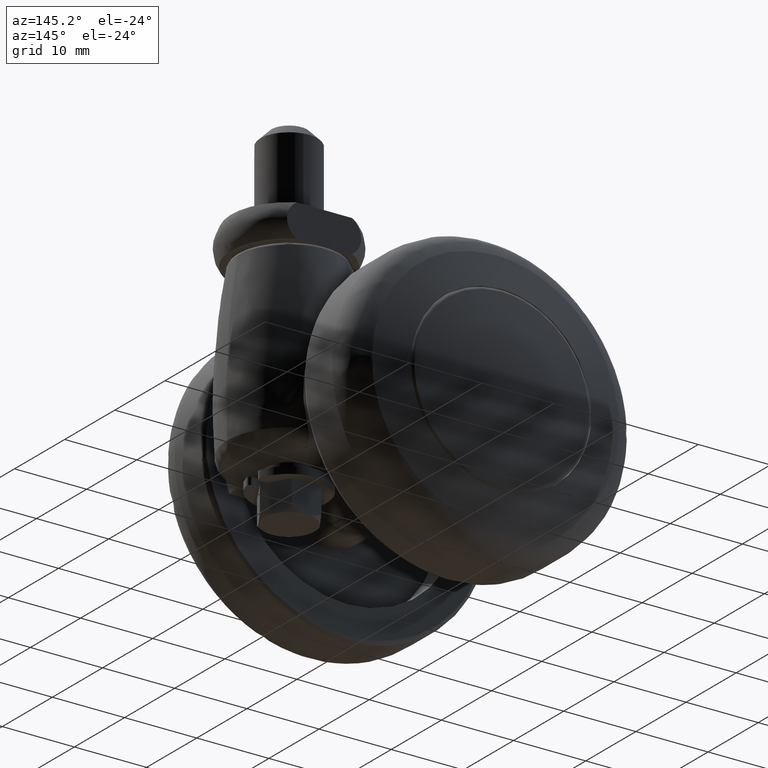
[diagram: clean part render]
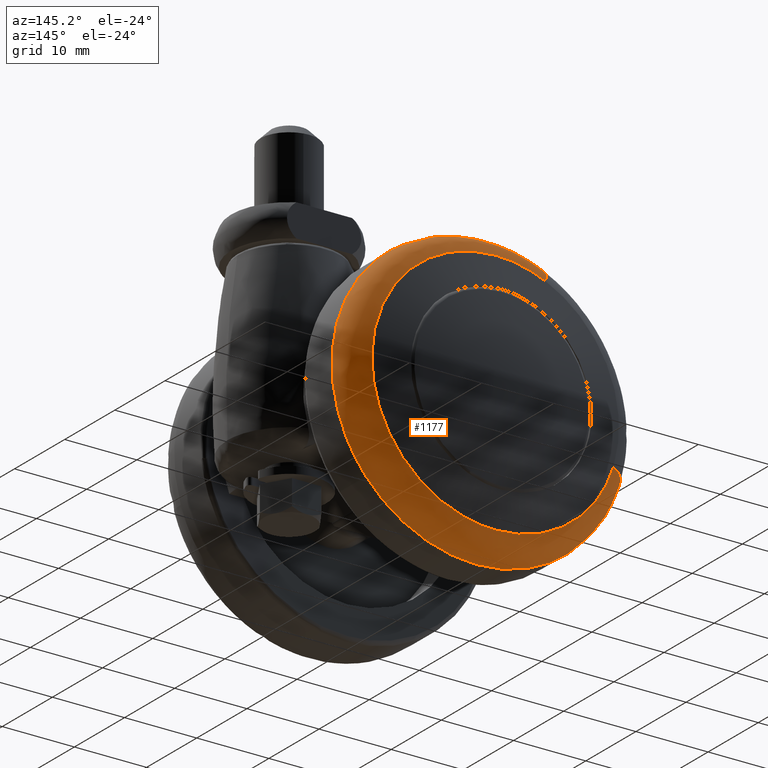
[diagram: same view with one face highlighted and labeled with its STEP entity id]
A machine part, auxiliary view. The second image highlights one B-rep face of the part: STEP entity #1177.
In plain terms, the highlighted face is a freeform B-spline surface patch.
Its self-contained STEP definition (entity closure, byte-faithful):
#260=CARTESIAN_POINT('',(-15.271114650524670,-15.710816999999979,-12.914838649031701));
#261=VERTEX_POINT('',#260);
#262=CARTESIAN_POINT('',(0.0,-15.710817000000000,-20.0));
#263=VERTEX_POINT('',#262);
#264=CARTESIAN_POINT('',(-15.271114650524668,-15.710816999999979,-12.914838649031706));
#265=CARTESIAN_POINT('',(-9.279167255449400,-15.710816999999995,-20.0));
#266=CARTESIAN_POINT('',(0.0,-15.710817000000000,-20.0));
#274=(BOUNDED_CURVE()B_SPLINE_CURVE(2,(#264,#265,#266),.UNSPECIFIED.,.F.,.U.)B_SPLINE_CURVE_WITH_KNOTS((3,3),(0.862408068754087,1.0),.UNSPECIFIED.)CURVE()GEOMETRIC_REPRESENTATION_ITEM()RATIONAL_B_SPLINE_CURVE((0.855039476729178,0.838801025498501,1.0))REPRESENTATION_ITEM(''));
#275=EDGE_CURVE('',#261,#263,#274,.T.);
#346=CARTESIAN_POINT('',(-13.767091024963470,-15.710817000000000,14.507487884205510));
#347=VERTEX_POINT('',#346);
#353=CARTESIAN_POINT('',(0.0,-15.710817000000000,20.0));
#354=VERTEX_POINT('',#353);
#355=CARTESIAN_POINT('',(0.0,-15.710817000000000,20.0));
#356=CARTESIAN_POINT('',(-7.979190138179949,-15.710816999999999,19.999999999999993));
#357=CARTESIAN_POINT('',(-13.767091024963474,-15.710817000000004,14.507487884205506));
#365=(BOUNDED_CURVE()B_SPLINE_CURVE(2,(#355,#356,#357),.UNSPECIFIED.,.F.,.U.)B_SPLINE_CURVE_WITH_KNOTS((3,3),(0.500000000000000,0.621049516487266),.UNSPECIFIED.)CURVE()GEOMETRIC_REPRESENTATION_ITEM()RATIONAL_B_SPLINE_CURVE((1.0,0.858181669920930,0.853699662122684))REPRESENTATION_ITEM(''));
#366=EDGE_CURVE('',#354,#347,#365,.T.);
#368=CARTESIAN_POINT('',(8.106151179093516,-15.710817000069889,18.283607769302009));
#369=VERTEX_POINT('',#368);
#370=CARTESIAN_POINT('',(8.106151179093518,-15.710817000069888,18.283607769302005));
#371=CARTESIAN_POINT('',(4.234789588246176,-15.710816999999997,20.0));
#372=CARTESIAN_POINT('',(0.0,-15.710817000000000,20.0));
#380=(BOUNDED_CURVE()B_SPLINE_CURVE(2,(#370,#371,#372),.UNSPECIFIED.,.F.,.U.)B_SPLINE_CURVE_WITH_KNOTS((3,3),(0.431175101877697,0.500000000000000),.UNSPECIFIED.)CURVE()GEOMETRIC_REPRESENTATION_ITEM()RATIONAL_B_SPLINE_CURVE((0.883129907828137,0.919366616217803,1.0))REPRESENTATION_ITEM(''));
#381=EDGE_CURVE('',#369,#354,#380,.T.);
#383=CARTESIAN_POINT('',(19.097290894931451,-15.710817000069440,-5.940831631545199));
#384=VERTEX_POINT('',#383);
#400=CARTESIAN_POINT('',(0.0,-15.710817000000000,-20.0));
#401=CARTESIAN_POINT('',(14.723730654574370,-15.710816999999993,-19.999999999999996));
#402=CARTESIAN_POINT('',(19.097290894931451,-15.710817000069435,-5.940831631545199));
#410=(BOUNDED_CURVE()B_SPLINE_CURVE(2,(#400,#401,#402),.UNSPECIFIED.,.F.,.U.)B_SPLINE_CURVE_WITH_KNOTS((3,3),(0.0,0.199458637681191),.UNSPECIFIED.)CURVE()GEOMETRIC_REPRESENTATION_ITEM()RATIONAL_B_SPLINE_CURVE((1.0,0.766319670357639,0.905515822342134))REPRESENTATION_ITEM(''));
#411=EDGE_CURVE('',#263,#384,#410,.T.);
#430=CARTESIAN_POINT('',(-13.767091024963474,-15.710817000000004,14.507487884205506));
#431=CARTESIAN_POINT('',(-19.999999999999996,-15.710816999999995,8.592678917762354));
#432=CARTESIAN_POINT('',(-20.0,-15.710817000000000,1.673897E-015));
#433=CARTESIAN_POINT('',(-20.0,-15.710817000000002,-7.323181462789214));
#434=CARTESIAN_POINT('',(-15.271114650524668,-15.710816999999979,-12.914838649031706));
#442=(BOUNDED_CURVE()B_SPLINE_CURVE(2,(#430,#431,#432,#433,#434),.UNSPECIFIED.,.F.,.U.)B_SPLINE_CURVE_WITH_KNOTS((3,2,3),(0.621049516487265,0.750000000000000,0.862408068754087),.UNSPECIFIED.)CURVE()GEOMETRIC_REPRESENTATION_ITEM()RATIONAL_B_SPLINE_CURVE((0.853699662122684,0.848925111265616,1.0,0.868305755688046,0.855039476729178))REPRESENTATION_ITEM(''));
#443=EDGE_CURVE('',#347,#261,#442,.T.);
#1060=CARTESIAN_POINT('',(8.103293420644290,-15.473506247143689,18.277167592414600));
#1061=CARTESIAN_POINT('',(7.044574368192737,-15.473506247143677,18.746557123842965));
#1062=CARTESIAN_POINT('',(5.938738749477722,-15.473506247143684,19.090563153760517));
#1063=CARTESIAN_POINT('',(-13.151824404282804,-15.473506247143685,25.029301903238235));
#1064=CARTESIAN_POINT('',(-19.090563153760517,-15.473506247143684,5.938738749477722));
#1065=CARTESIAN_POINT('',(-25.029301903238249,-15.473506247143685,-13.151824404282801));
#1066=CARTESIAN_POINT('',(-5.938738749477723,-15.473506247143684,-19.090563153760517));
#1067=CARTESIAN_POINT('',(13.151824404282799,-15.473506247143685,-25.029301903238249));
#1068=CARTESIAN_POINT('',(19.090563153760517,-15.473506247143684,-5.938738749477724));
#1069=CARTESIAN_POINT('',(8.184736693350166,-18.854524697004308,18.460864796409179));
#1070=CARTESIAN_POINT('',(7.115376838445620,-18.854524697004312,18.934971992326414));
#1071=CARTESIAN_POINT('',(5.998426865703460,-18.854524697004312,19.282435502487203));
#1072=CARTESIAN_POINT('',(-13.284008636783749,-18.854524697004319,25.280862368190665));
#1073=CARTESIAN_POINT('',(-19.282435502487203,-18.854524697004312,5.998426865703461));
#1074=CARTESIAN_POINT('',(-25.280862368190665,-18.854524697004319,-13.284008636783748));
#1075=CARTESIAN_POINT('',(-5.998426865703461,-18.854524697004312,-19.282435502487203));
#1076=CARTESIAN_POINT('',(13.284008636783748,-18.854524697004319,-25.280862368190665));
#1077=CARTESIAN_POINT('',(19.282435502487203,-18.854524697004312,-5.998426865703464));
#1078=CARTESIAN_POINT('',(6.846554747843488,-19.610033649774852,15.442564160169313));
#1079=CARTESIAN_POINT('',(5.952032289021034,-19.610033649774856,15.839156133107325));
#1080=CARTESIAN_POINT('',(5.017700565778839,-19.610033649774845,16.129810314704468));
#1081=CARTESIAN_POINT('',(-11.112109748925622,-19.610033649774849,21.147510880483306));
#1082=CARTESIAN_POINT('',(-16.129810314704468,-19.610033649774845,5.017700565778839));
#1083=CARTESIAN_POINT('',(-21.147510880483306,-19.610033649774849,-11.112109748925622));
#1084=CARTESIAN_POINT('',(-5.017700565778839,-19.610033649774845,-16.129810314704468));
#1085=CARTESIAN_POINT('',(11.112109748925622,-19.610033649774849,-21.147510880483306));
#1086=CARTESIAN_POINT('',(16.129810314704468,-19.610033649774845,-5.017700565778840));
#1094=(BOUNDED_SURFACE()B_SPLINE_SURFACE(2,2,((#1060,#1069,#1078),(#1061,#1070,#1079),(#1062,#1071,#1080),(#1063,#1072,#1081),(#1064,#1073,#1082),(#1065,#1074,#1083),(#1066,#1075,#1084),(#1067,#1076,#1085),(#1068,#1077,#1086)),.UNSPECIFIED.,.F.,.F.,.U.)B_SPLINE_SURFACE_WITH_KNOTS((3,2,2,2,3),(3,3),(0.0,2.650030368855470,35.775441570402727,68.900852771949985,102.026263973497290),(0.0,5.864055308616055),.UNSPECIFIED.)GEOMETRIC_REPRESENTATION_ITEM()RATIONAL_B_SPLINE_SURFACE(((0.875931297452828,0.669055781850209,0.877444359425143),(0.893948527657870,0.682817742493314,0.895492712146242),(0.915397607339027,0.699201025997140,0.916978842435022),(0.647283855631366,0.494409786895169,0.648401957690395),(0.915397607339027,0.699201025997140,0.916978842435022),(0.647283855631366,0.494409786895169,0.648401957690395),(0.915397607339027,0.699201025997140,0.916978842435022),(0.647283855631366,0.494409786895169,0.648401957690395),(0.915397607339027,0.699201025997140,0.916978842435022)))REPRESENTATION_ITEM('')SURFACE());
#1095=CARTESIAN_POINT('',(6.939526629438012,-19.550340797989250,15.652259647310309));
#1096=VERTEX_POINT('',#1095);
#1097=CARTESIAN_POINT('',(0.0,-19.550340798363852,17.121631401930902));
#1098=VERTEX_POINT('',#1097);
#1099=CARTESIAN_POINT('',(6.939526629438012,-19.550340797989247,15.652259647310315));
#1100=CARTESIAN_POINT('',(3.625325319825641,-19.550340798363859,17.121631401930895));
#1101=CARTESIAN_POINT('',(0.0,-19.550340798363852,17.121631401930902));
#1109=(BOUNDED_CURVE()B_SPLINE_CURVE(2,(#1099,#1100,#1101),.UNSPECIFIED.,.F.,.U.)B_SPLINE_CURVE_WITH_KNOTS((3,3),(0.431175101876103,0.500000000000000),.UNSPECIFIED.)CURVE()GEOMETRIC_REPRESENTATION_ITEM()RATIONAL_B_SPLINE_CURVE((0.883129907826458,0.919366616215936,1.0))REPRESENTATION_ITEM(''));
#1110=EDGE_CURVE('',#1096,#1098,#1109,.T.);
#1111=ORIENTED_EDGE('',*,*,#1110,.F.);
#1112=CARTESIAN_POINT('',(8.106151179093516,-15.710817000069893,18.283607769302009));
#1113=CARTESIAN_POINT('',(8.106151179047831,-18.709489488835210,18.283607769207627));
#1114=CARTESIAN_POINT('',(6.939526629438013,-19.550340797989247,15.652259647310313));
#1122=(BOUNDED_CURVE()B_SPLINE_CURVE(2,(#1112,#1113,#1114),.UNSPECIFIED.,.F.,.U.)B_SPLINE_CURVE_WITH_KNOTS((3,3),(-1.680154585360279,-0.314372153896799),.UNSPECIFIED.)CURVE()GEOMETRIC_REPRESENTATION_ITEM()RATIONAL_B_SPLINE_CURVE((0.857997957390248,0.687057807158320,0.859373527053074))REPRESENTATION_ITEM(''));
#1123=EDGE_CURVE('',#369,#1096,#1122,.T.);
#1124=ORIENTED_EDGE('',*,*,#1123,.F.);
#1125=ORIENTED_EDGE('',*,*,#381,.T.);
#1126=ORIENTED_EDGE('',*,*,#366,.T.);
#1127=ORIENTED_EDGE('',*,*,#443,.T.);
#1128=ORIENTED_EDGE('',*,*,#275,.T.);
#1129=ORIENTED_EDGE('',*,*,#411,.T.);
#1130=CARTESIAN_POINT('',(16.348838775160761,-19.550340797973998,-5.085836471327559));
#1131=VERTEX_POINT('',#1130);
#1132=CARTESIAN_POINT('',(19.097290894931447,-15.710817000069436,-5.940831631545199));
#1133=CARTESIAN_POINT('',(19.097290894833442,-18.709489488750066,-5.940831631509769));
#1134=CARTESIAN_POINT('',(16.348838775160761,-19.550340797973998,-5.085836471327559));
#1142=(BOUNDED_CURVE()B_SPLINE_CURVE(2,(#1132,#1133,#1134),.UNSPECIFIED.,.F.,.U.)B_SPLINE_CURVE_WITH_KNOTS((3,3),(-1.680154585360538,-0.314372153927780),.UNSPECIFIED.)CURVE()GEOMETRIC_REPRESENTATION_ITEM()RATIONAL_B_SPLINE_CURVE((0.896656290732558,0.718014185910960,0.898093838658893))REPRESENTATION_ITEM(''));
#1143=EDGE_CURVE('',#384,#1131,#1142,.T.);
#1144=ORIENTED_EDGE('',*,*,#1143,.T.);
#1145=CARTESIAN_POINT('',(0.0,-19.550340798363852,-17.121631401930902));
#1146=VERTEX_POINT('',#1145);
#1147=CARTESIAN_POINT('',(0.0,-19.550340798363852,-17.121631401930902));
#1148=CARTESIAN_POINT('',(12.604714456254973,-19.550340798363852,-17.121631401930902));
#1149=CARTESIAN_POINT('',(16.348838775160754,-19.550340797974002,-5.085836471327559));
#1157=(BOUNDED_CURVE()B_SPLINE_CURVE(2,(#1147,#1148,#1149),.UNSPECIFIED.,.F.,.U.)B_SPLINE_CURVE_WITH_KNOTS((3,3),(0.0,0.199458637678867),.UNSPECIFIED.)CURVE()GEOMETRIC_REPRESENTATION_ITEM()RATIONAL_B_SPLINE_CURVE((1.0,0.766319670360362,0.905515822338890))REPRESENTATION_ITEM(''));
#1158=EDGE_CURVE('',#1146,#1131,#1157,.T.);
#1159=ORIENTED_EDGE('',*,*,#1158,.F.);
#1160=CARTESIAN_POINT('',(0.0,-19.550340798363852,17.121631401930902));
#1161=CARTESIAN_POINT('',(-17.121631401930909,-19.550340798363848,17.121631401930909));
#1162=CARTESIAN_POINT('',(-17.121631401930902,-19.550340798363852,1.673897E-015));
#1163=CARTESIAN_POINT('',(-17.121631401930909,-19.550340798363848,-17.121631401930909));
#1164=CARTESIAN_POINT('',(0.0,-19.550340798363852,-17.121631401930902));
#1172=(BOUNDED_CURVE()B_SPLINE_CURVE(2,(#1160,#1161,#1162,#1163,#1164),.UNSPECIFIED.,.F.,.U.)B_SPLINE_CURVE_WITH_KNOTS((3,2,3),(0.500000000000000,0.750000000000000,1.0),.UNSPECIFIED.)CURVE()GEOMETRIC_REPRESENTATION_ITEM()RATIONAL_B_SPLINE_CURVE((1.0,0.707106781186548,1.0,0.707106781186548,1.0))REPRESENTATION_ITEM(''));
#1173=EDGE_CURVE('',#1098,#1146,#1172,.T.);
#1174=ORIENTED_EDGE('',*,*,#1173,.F.);
#1175=EDGE_LOOP('',(#1111,#1124,#1125,#1126,#1127,#1128,#1129,#1144,#1159,#1174));
#1176=FACE_OUTER_BOUND('',#1175,.T.);
#1177=ADVANCED_FACE('',(#1176),#1094,.T.);